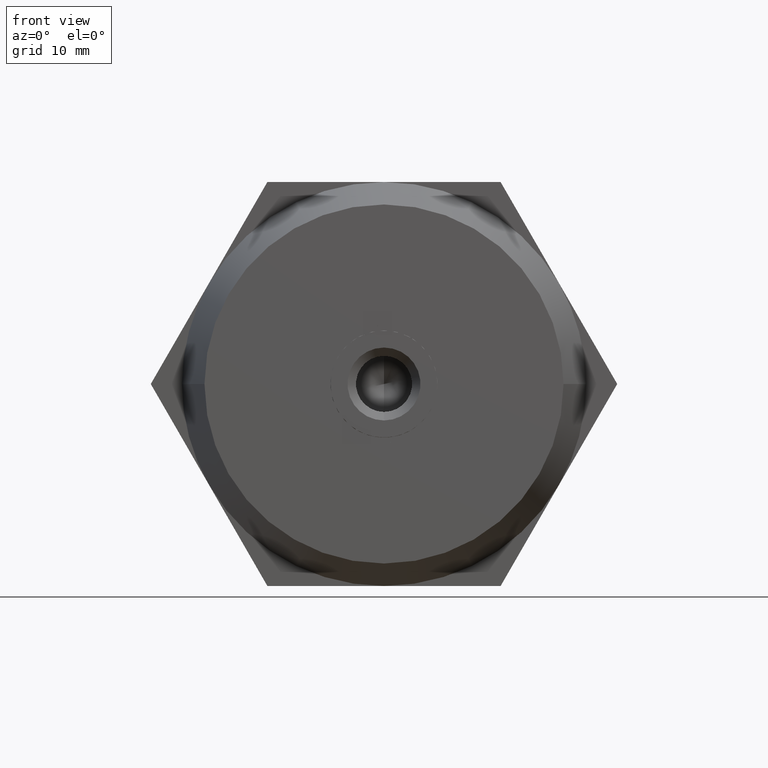
[diagram: clean part render]
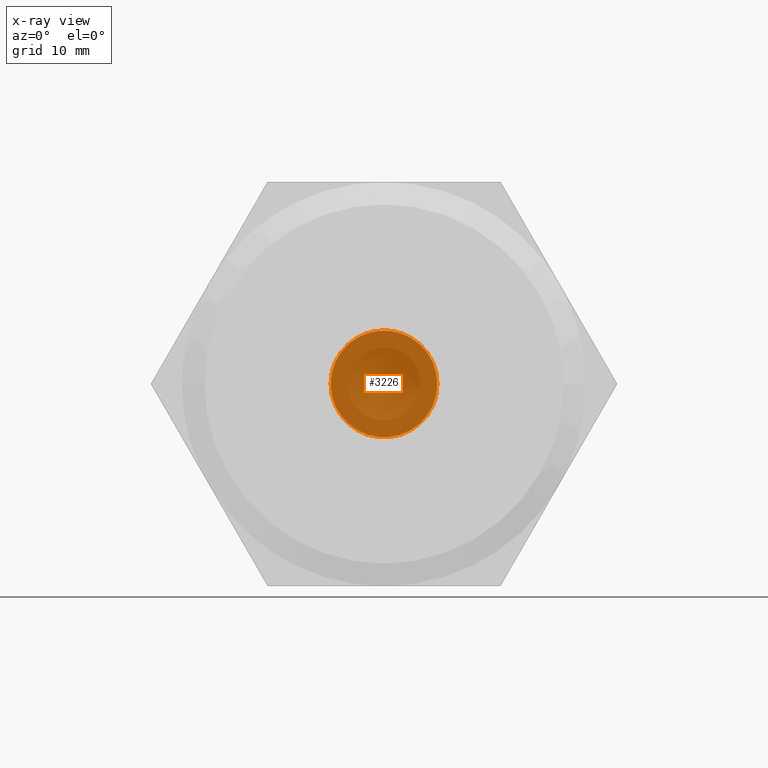
[diagram: x-ray — body ghosted, one internal face saturated and labeled with its STEP entity id]
A machine part, front view, then the same camera in x-ray: the body is ghosted and one INTERNAL B-rep face — a face not visible from any outside direction — is saturated and labeled: STEP entity #3226.
In plain terms, the highlighted planar face has unit normal (0, 1, 0).
Its self-contained STEP definition (entity closure, byte-faithful):
#1 = DIRECTION ( 'NONE',  ( 0.0000000000000000000, 0.0000000000000000000, 1.000000000000000000 ) ) ;
#114 = CARTESIAN_POINT ( 'NONE',  ( -2.381250000000000100, 9.509999999999429600, -4.124445985523444800 ) ) ;
#126 = CARTESIAN_POINT ( 'NONE',  ( 4.762500000000000200, 9.509999999999999800, 0.0000000000000000000 ) ) ;
#187 = DIRECTION ( 'NONE',  ( -0.0000000000000000000, -1.000000000000000000, -0.0000000000000000000 ) ) ;
#281 = EDGE_CURVE ( 'NONE', #2132, #2122, #551, .T. ) ;
#317 = CIRCLE ( 'NONE', #3361, 4.762500000000000200 ) ;
#325 = ORIENTED_EDGE ( 'NONE', *, *, #1361, .F. ) ;
#332 = CARTESIAN_POINT ( 'NONE',  ( 0.0000000000000000000, 9.509999999999999800, 0.0000000000000000000 ) ) ;
#340 = VERTEX_POINT ( 'NONE', #114 ) ;
#360 = DIRECTION ( 'NONE',  ( 0.0000000000000000000, 0.0000000000000000000, 1.000000000000000000 ) ) ;
#409 = ORIENTED_EDGE ( 'NONE', *, *, #1948, .F. ) ;
#423 = CARTESIAN_POINT ( 'NONE',  ( 2.381250000000065400, 9.509999999999429600, -4.124445985523409200 ) ) ;
#442 = EDGE_CURVE ( 'NONE', #3314, #2112, #1319, .T. ) ;
#455 = CARTESIAN_POINT ( 'NONE',  ( 0.0000000000000000000, 9.509999999999999800, 0.0000000000000000000 ) ) ;
#481 = EDGE_CURVE ( 'NONE', #1506, #3314, #3371, .T. ) ;
#502 = DIRECTION ( 'NONE',  ( 0.0000000000000000000, 0.0000000000000000000, 1.000000000000000000 ) ) ;
#551 = CIRCLE ( 'NONE', #2183, 4.762500000000000200 ) ;
#552 = AXIS2_PLACEMENT_3D ( 'NONE', #1364, #1671, #1656 ) ;
#646 = ORIENTED_EDGE ( 'NONE', *, *, #724, .F. ) ;
#724 = EDGE_CURVE ( 'NONE', #2929, #1506, #2921, .T. ) ;
#754 = CARTESIAN_POINT ( 'NONE',  ( 0.0000000000000000000, 9.509999999999999800, 0.0000000000000000000 ) ) ;
#805 = AXIS2_PLACEMENT_3D ( 'NONE', #455, #3459, #2186 ) ;
#877 = ORIENTED_EDGE ( 'NONE', *, *, #442, .F. ) ;
#888 = CIRCLE ( 'NONE', #3674, 4.762500000000000200 ) ;
#889 = DIRECTION ( 'NONE',  ( 0.0000000000000000000, 1.000000000000000000, 0.0000000000000000000 ) ) ;
#914 = CARTESIAN_POINT ( 'NONE',  ( 0.0000000000000000000, 9.509999999999999800, 0.0000000000000000000 ) ) ;
#944 = EDGE_CURVE ( 'NONE', #340, #2929, #317, .T. ) ;
#1030 = DIRECTION ( 'NONE',  ( -0.0000000000000000000, -1.000000000000000000, -0.0000000000000000000 ) ) ;
#1062 = ORIENTED_EDGE ( 'NONE', *, *, #481, .F. ) ;
#1212 = DIRECTION ( 'NONE',  ( -0.0000000000000000000, -1.000000000000000000, -0.0000000000000000000 ) ) ;
#1319 = CIRCLE ( 'NONE', #552, 4.762500000000000200 ) ;
#1361 = EDGE_CURVE ( 'NONE', #2112, #2132, #2133, .T. ) ;
#1364 = CARTESIAN_POINT ( 'NONE',  ( 0.0000000000000000000, 9.509999999999999800, 0.0000000000000000000 ) ) ;
#1405 = DIRECTION ( 'NONE',  ( -1.776356839400250500E-015, 0.0000000000000000000, 1.000000000000000000 ) ) ;
#1463 = AXIS2_PLACEMENT_3D ( 'NONE', #3251, #889, #2406 ) ;
#1506 = VERTEX_POINT ( 'NONE', #126 ) ;
#1561 = CARTESIAN_POINT ( 'NONE',  ( 2.381249999999965000, 9.509999999999390500, 4.124445985523424300 ) ) ;
#1602 = CARTESIAN_POINT ( 'NONE',  ( 0.0000000000000000000, 9.509999999999999800, 0.0000000000000000000 ) ) ;
#1656 = DIRECTION ( 'NONE',  ( 3.552713678800500900E-015, 0.0000000000000000000, 1.000000000000000000 ) ) ;
#1671 = DIRECTION ( 'NONE',  ( -0.0000000000000000000, -1.000000000000000000, -0.0000000000000000000 ) ) ;
#1948 = EDGE_CURVE ( 'NONE', #2122, #340, #888, .T. ) ;
#2040 = AXIS2_PLACEMENT_3D ( 'NONE', #754, #2880, #1405 ) ;
#2112 = VERTEX_POINT ( 'NONE', #2259 ) ;
#2122 = VERTEX_POINT ( 'NONE', #2819 ) ;
#2132 = VERTEX_POINT ( 'NONE', #2922 ) ;
#2133 = CIRCLE ( 'NONE', #3112, 4.762500000000000200 ) ;
#2183 = AXIS2_PLACEMENT_3D ( 'NONE', #3779, #187, #502 ) ;
#2186 = DIRECTION ( 'NONE',  ( 0.0000000000000000000, 0.0000000000000000000, 1.000000000000000000 ) ) ;
#2259 = CARTESIAN_POINT ( 'NONE',  ( 0.0000000000000000000, 9.509999999999999800, 4.762500000000000200 ) ) ;
#2382 = ORIENTED_EDGE ( 'NONE', *, *, #944, .F. ) ;
#2406 = DIRECTION ( 'NONE',  ( 0.0000000000000000000, 0.0000000000000000000, 1.000000000000000000 ) ) ;
#2445 = DIRECTION ( 'NONE',  ( -0.0000000000000000000, -1.000000000000000000, -0.0000000000000000000 ) ) ;
#2819 = CARTESIAN_POINT ( 'NONE',  ( -4.762500000000000200, 9.509999999999999800, -6.938893903907230000E-015 ) ) ;
#2880 = DIRECTION ( 'NONE',  ( -0.0000000000000000000, -1.000000000000000000, -0.0000000000000000000 ) ) ;
#2921 = CIRCLE ( 'NONE', #805, 4.762500000000000200 ) ;
#2922 = CARTESIAN_POINT ( 'NONE',  ( -2.381250000000000100, 9.509999999999999800, 4.124445985523419900 ) ) ;
#2929 = VERTEX_POINT ( 'NONE', #423 ) ;
#3112 = AXIS2_PLACEMENT_3D ( 'NONE', #1602, #1030, #360 ) ;
#3149 = EDGE_LOOP ( 'NONE', ( #877, #1062, #646, #2382, #409, #3273, #325 ) ) ;
#3226 = ADVANCED_FACE ( 'NONE', ( #3815 ), #3902, .T. ) ;
#3251 = CARTESIAN_POINT ( 'NONE',  ( 0.0000000000000000000, 9.509999999999999800, 0.0000000000000000000 ) ) ;
#3273 = ORIENTED_EDGE ( 'NONE', *, *, #281, .F. ) ;
#3314 = VERTEX_POINT ( 'NONE', #1561 ) ;
#3361 = AXIS2_PLACEMENT_3D ( 'NONE', #914, #1212, #3579 ) ;
#3371 = CIRCLE ( 'NONE', #2040, 4.762500000000000200 ) ;
#3459 = DIRECTION ( 'NONE',  ( -0.0000000000000000000, -1.000000000000000000, -0.0000000000000000000 ) ) ;
#3579 = DIRECTION ( 'NONE',  ( 1.776356839400250500E-015, 0.0000000000000000000, 1.000000000000000000 ) ) ;
#3674 = AXIS2_PLACEMENT_3D ( 'NONE', #332, #2445, #1 ) ;
#3779 = CARTESIAN_POINT ( 'NONE',  ( 0.0000000000000000000, 9.509999999999999800, 0.0000000000000000000 ) ) ;
#3815 = FACE_OUTER_BOUND ( 'NONE', #3149, .T. ) ;
#3902 = PLANE ( 'NONE',  #1463 ) ;